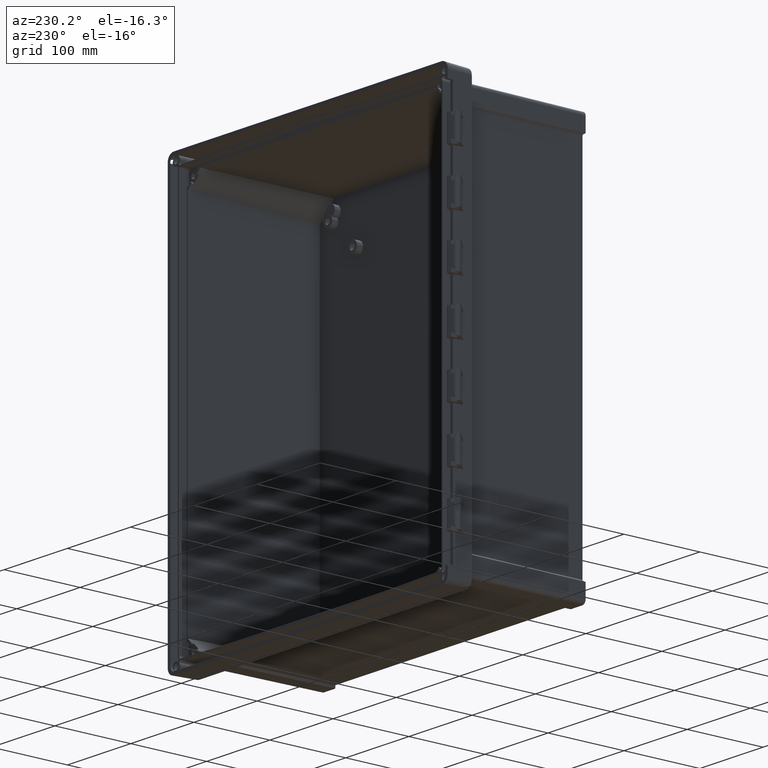
[diagram: clean part render]
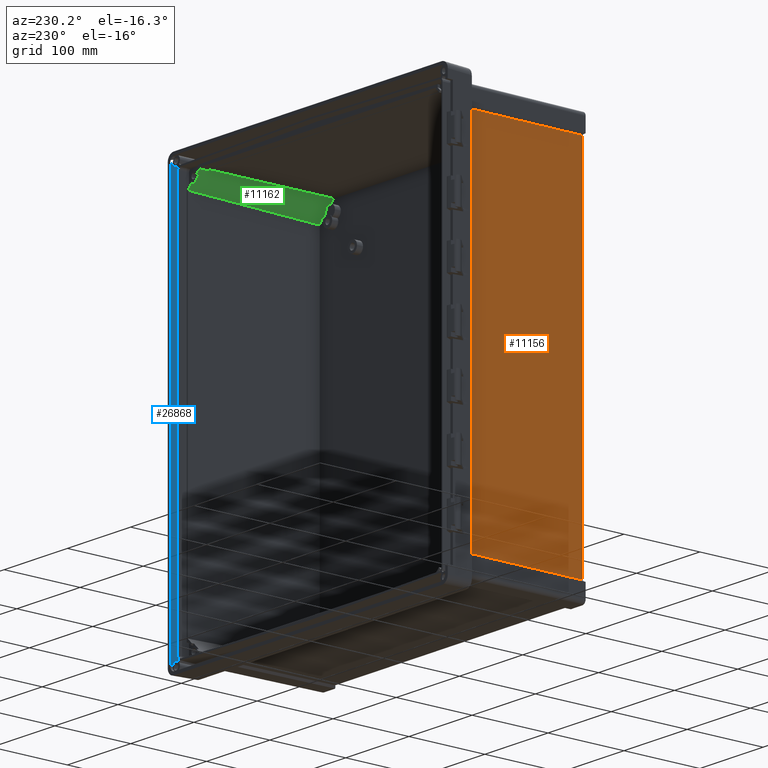
[diagram: same view with three faces highlighted in distinct colors, each labeled with its STEP entity id]
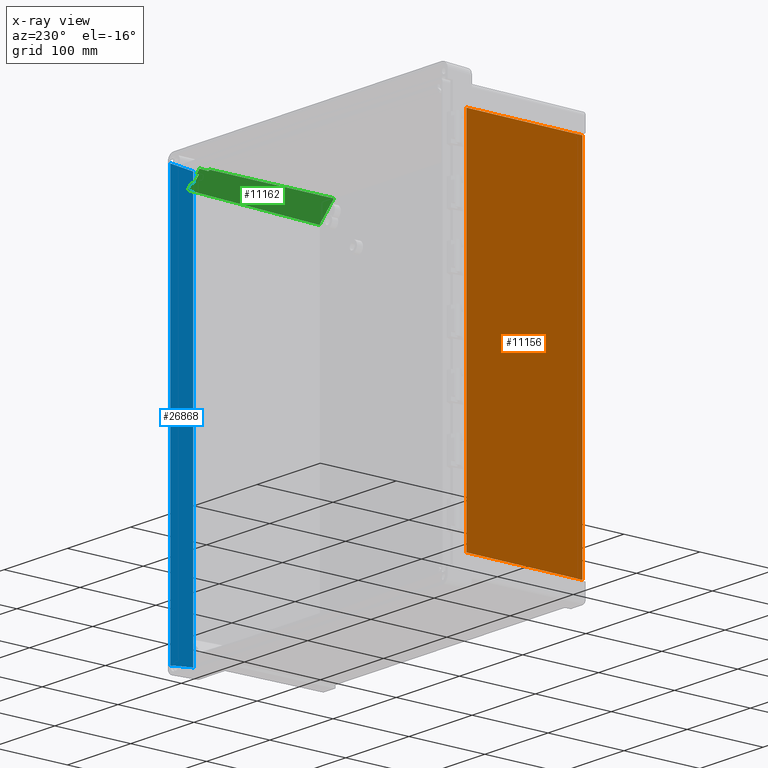
[diagram: x-ray of the same camera — body ghosted, the three highlighted faces saturated]
A machine part, auxiliary view with three faces highlighted in distinct colors.
The next image is the same camera in x-ray (body ghosted, the three faces saturated) — at least one of them is partly hidden behind the body in this view.
Their STEP definitions:

[orange] entity #11156 — the highlighted planar face has unit normal (-1, -0.0087, 0).
#654 = CARTESIAN_POINT ( 'NONE',  ( -207.2471312138000000, -189.4000000000999900, 234.4709002659000100 ) ) ;
#885 = CARTESIAN_POINT ( 'NONE',  ( -208.5928791320000100, -35.19256569062999800, 234.6123440854000000 ) ) ;
#2922 = EDGE_CURVE ( 'NONE', #5959, #12480, #6989, .T. ) ;
#3269 = VERTEX_POINT ( 'NONE', #885 ) ;
#3688 = LINE ( 'NONE', #654, #6476 ) ;
#4190 = VERTEX_POINT ( 'NONE', #24749 ) ;
#4219 = DIRECTION ( 'NONE',  ( -0.008726532000220398700, 0.9999615024547456900, -0.0009171955609129419500 ) ) ;
#4919 = FACE_OUTER_BOUND ( 'NONE', #10444, .T. ) ;
#5228 = VECTOR ( 'NONE', #4219, 999.9999999999998900 ) ;
#5959 = VERTEX_POINT ( 'NONE', #6683 ) ;
#6476 = VECTOR ( 'NONE', #26833, 999.9999999999998900 ) ;
#6683 = CARTESIAN_POINT ( 'NONE',  ( -207.2471312138000000, -189.4000000000999900, 234.4709002659000100 ) ) ;
#6938 = DIRECTION ( 'NONE',  ( 0.0000000000000000000, 0.0000000000000000000, -1.000000000000000000 ) ) ;
#6964 = CARTESIAN_POINT ( 'NONE',  ( -207.2471312138000000, -189.4000000000999900, 234.4709002659000100 ) ) ;
#6989 = LINE ( 'NONE', #6964, #9142 ) ;
#7232 = AXIS2_PLACEMENT_3D ( 'NONE', #21560, #18609, #15654 ) ;
#7254 = CARTESIAN_POINT ( 'NONE',  ( -207.2471312138000000, -189.4000000000999900, -234.4709002659000100 ) ) ;
#8912 = DIRECTION ( 'NONE',  ( 0.0000000000000000000, 0.0000000000000000000, -1.000000000000000000 ) ) ;
#9142 = VECTOR ( 'NONE', #6938, 1000.000000000000000 ) ;
#10222 = LINE ( 'NONE', #7254, #5228 ) ;
#10444 = EDGE_LOOP ( 'NONE', ( #29011, #12749, #21706, #20069 ) ) ;
#11156 = ADVANCED_FACE ( 'NONE', ( #4919 ), #24519, .T. ) ;
#11900 = CARTESIAN_POINT ( 'NONE',  ( -208.5928791320000100, -35.19256569062999800, 234.6123440854000000 ) ) ;
#12480 = VERTEX_POINT ( 'NONE', #13803 ) ;
#12749 = ORIENTED_EDGE ( 'NONE', *, *, #2922, .F. ) ;
#13803 = CARTESIAN_POINT ( 'NONE',  ( -207.2471312138000000, -189.4000000000999900, -234.4709002659000100 ) ) ;
#14911 = LINE ( 'NONE', #11900, #25597 ) ;
#15654 = DIRECTION ( 'NONE',  ( -0.008726535498373750800, 0.9999619230641713100, 0.0000000000000000000 ) ) ;
#17247 = EDGE_CURVE ( 'NONE', #3269, #4190, #14911, .T. ) ;
#18609 = DIRECTION ( 'NONE',  ( -0.9999619230641713100, -0.008726535498373750800, 0.0000000000000000000 ) ) ;
#20069 = ORIENTED_EDGE ( 'NONE', *, *, #17247, .T. ) ;
#21560 = CARTESIAN_POINT ( 'NONE',  ( -208.9000000000000100, 0.0000000000000000000, 157.6999999999999900 ) ) ;
#21706 = ORIENTED_EDGE ( 'NONE', *, *, #27906, .T. ) ;
#22127 = EDGE_CURVE ( 'NONE', #12480, #4190, #10222, .T. ) ;
#24519 = PLANE ( 'NONE',  #7232 ) ;
#24749 = CARTESIAN_POINT ( 'NONE',  ( -208.5928791320000100, -35.19256569062999800, -234.6123440854000000 ) ) ;
#25597 = VECTOR ( 'NONE', #8912, 1000.000000000000000 ) ;
#26833 = DIRECTION ( 'NONE',  ( -0.008726532000220398700, 0.9999615024547456900, 0.0009171955609133419100 ) ) ;
#27906 = EDGE_CURVE ( 'NONE', #5959, #3269, #3688, .T. ) ;
#29011 = ORIENTED_EDGE ( 'NONE', *, *, #22127, .F. ) ;

[blue] entity #26868 — the highlighted planar face has unit normal (0.9994, -0.0349, 0).
#136 = CARTESIAN_POINT ( 'NONE',  ( 216.9128039142223100, -13.95147051077854900, 262.6841890896626500 ) ) ;
#199 = CARTESIAN_POINT ( 'NONE',  ( 217.1742322760200900, -6.465140338090647800, -263.4865439739774000 ) ) ;
#308 = CARTESIAN_POINT ( 'NONE',  ( 217.3772715370931500, -0.6508580205318745800, 264.6830965878095300 ) ) ;
#568 = CARTESIAN_POINT ( 'NONE',  ( 217.1742371676016000, -6.465000354857054700, -263.4865627837542100 ) ) ;
#650 = CARTESIAN_POINT ( 'NONE',  ( 216.3715907726999900, -29.44978711059999900, 261.5975893381000200 ) ) ;
#853 = CARTESIAN_POINT ( 'NONE',  ( 216.6248665685366200, -22.19691727144200800, 262.0369375502506800 ) ) ;
#917 = CARTESIAN_POINT ( 'NONE',  ( 217.1741685305564400, -6.466964569773228500, -263.4862991358581300 ) ) ;
#1029 = CARTESIAN_POINT ( 'NONE',  ( 217.3330318160030900, -1.917717878832822400, 264.2842073695072700 ) ) ;
#1292 = CARTESIAN_POINT ( 'NONE',  ( 217.1740655630265200, -6.469911237246535900, -263.4859036654119100 ) ) ;
#1634 = CARTESIAN_POINT ( 'NONE',  ( 217.3248679220687900, -2.154345437178192000, -264.0653026105287600 ) ) ;
#1743 = CARTESIAN_POINT ( 'NONE',  ( 217.2745149666645500, -3.593421197810410500, 263.9304644168272500 ) ) ;
#2054 = EDGE_LOOP ( 'NONE', ( #5017, #21178, #25446, #16291 ) ) ;
#2467 = CARTESIAN_POINT ( 'NONE',  ( 217.1723668219998200, -6.518561340808479300, 263.4793861263141800 ) ) ;
#2634 = CARTESIAN_POINT ( 'NONE',  ( 217.3966079507783900, -0.09713558065849843500, 265.0181641220518700 ) ) ;
#2680 = VERTEX_POINT ( 'NONE', #10883 ) ;
#3175 = CARTESIAN_POINT ( 'NONE',  ( 216.9125129688265800, -13.95980209681936500, 262.6834506456178800 ) ) ;
#3340 = CARTESIAN_POINT ( 'NONE',  ( 217.3734942477852600, -0.7590254338749520300, 264.6381057388116500 ) ) ;
#3498 = DIRECTION ( 'NONE',  ( 0.03489949670249985200, 0.9993908270190956500, 0.0000000000000000000 ) ) ;
#3887 = CARTESIAN_POINT ( 'NONE',  ( 216.4776409420134400, -26.41290760229510300, 261.7709784421554100 ) ) ;
#3951 = CARTESIAN_POINT ( 'NONE',  ( 217.1738252217219600, -6.476789210377615900, -263.4849809108298500 ) ) ;
#4061 = CARTESIAN_POINT ( 'NONE',  ( 217.3312216104204400, -1.969555384389345400, 264.2712746808142600 ) ) ;
#4767 = CARTESIAN_POINT ( 'NONE',  ( 217.2734052352008100, -3.625199749082059300, 263.9246916374008300 ) ) ;
#5017 = ORIENTED_EDGE ( 'NONE', *, *, #10313, .T. ) ;
#5479 = CARTESIAN_POINT ( 'NONE',  ( 217.1704208929017700, -6.574285459330807800, 263.4719478878082600 ) ) ;
#5654 = CARTESIAN_POINT ( 'NONE',  ( 217.3961115594753700, -0.1113503677377352500, 265.0052578864084600 ) ) ;
#6214 = CARTESIAN_POINT ( 'NONE',  ( 216.9120764603276800, -13.97230206475489200, 262.6823430243769100 ) ) ;
#6280 = CARTESIAN_POINT ( 'NONE',  ( 217.1733442041677900, -6.490554819413222100, -263.4831354408785800 ) ) ;
#6384 = CARTESIAN_POINT ( 'NONE',  ( 217.3718279794655600, -0.8067411155154443600, 264.6194629691211200 ) ) ;
#6545 = DIRECTION ( 'NONE',  ( 0.9993908270190957600, -0.03489949670249985900, 0.0000000000000000000 ) ) ;
#7100 = CARTESIAN_POINT ( 'NONE',  ( 217.3310176385373900, -1.975396374897126400, 264.2698236435470600 ) ) ;
#7793 = CARTESIAN_POINT ( 'NONE',  ( 217.2717349633219000, -3.673030077657860800, 263.9160328012225700 ) ) ;
#8490 = EDGE_CURVE ( 'NONE', #2680, #16603, #28639, .T. ) ;
#8499 = CARTESIAN_POINT ( 'NONE',  ( 217.1665081594796000, -6.686331484636408400, 263.4570776154957900 ) ) ;
#8663 = CARTESIAN_POINT ( 'NONE',  ( 217.3952708802200700, -0.1354242718240630200, 264.9846998122538900 ) ) ;
#8990 = VECTOR ( 'NONE', #20056, 1000.000000000000000 ) ;
#9198 = CARTESIAN_POINT ( 'NONE',  ( 216.9110573076584700, -14.00148677872450900, 262.6797588885981400 ) ) ;
#9257 = CARTESIAN_POINT ( 'NONE',  ( 217.1723808292313200, -6.518124688578189400, -263.4794446581608400 ) ) ;
#9368 = CARTESIAN_POINT ( 'NONE',  ( 217.3709869402981700, -0.8308253261322187100, 264.6102480880653000 ) ) ;
#9521 = CARTESIAN_POINT ( 'NONE',  ( 217.4000000000000100, 0.0000000000000000000, -170.6471312404000000 ) ) ;
#9905 = CARTESIAN_POINT ( 'NONE',  ( 216.3715907726999900, -29.44978711059999900, 261.5975893381000200 ) ) ;
#9967 = CARTESIAN_POINT ( 'NONE',  ( 217.1704487196677500, -6.573419031283166600, -263.4720637241438800 ) ) ;
#10069 = CARTESIAN_POINT ( 'NONE',  ( 217.3304993415737300, -1.990238458025442200, 264.2661438713678900 ) ) ;
#10305 = EDGE_CURVE ( 'NONE', #16603, #23004, #21808, .T. ) ;
#10313 = EDGE_CURVE ( 'NONE', #16952, #23004, #11239, .T. ) ;
#10775 = CARTESIAN_POINT ( 'NONE',  ( 217.2610487557726900, -3.979043023669430700, 263.8611998316885100 ) ) ;
#10883 = CARTESIAN_POINT ( 'NONE',  ( 216.3715907726999900, -29.44978711059999900, -261.5975893381000200 ) ) ;
#11239 = B_SPLINE_CURVE_WITH_KNOTS ( 'NONE', 3,
 ( #9905, #3887, #853, #27028, #24064, #21111, #18152, #15206, #12186, #9198, #6214, #3175, #136, #26341, #23356, #20428, #17458, #14498, #11479, #8499, #5479, #2467, #28586, #25626, #22656, #19740, #16755, #13788, #10775, #7793, #4767, #1743, #27884, #24936, #21978, #19018, #16069, #13070, #10069, #7100, #4061, #1029, #27205, #24233, #21278, #18318, #15376, #12353, #9368, #6384, #3340, #308, #26505, #23523, #20590, #17626, #14658, #11654, #8663, #5654, #2634, #28759, #25798, #22815, #19901 ),
 .UNSPECIFIED., .F., .F.,
 ( 4, 1, 1, 1, 1, 1, 1, 1, 1, 1, 2, 2, 1, 1, 1, 1, 1, 1, 1, 1, 2, 2, 1, 1, 1, 2, 2, 1, 1, 1, 1, 2, 2, 1, 1, 1, 1, 2, 2, 1, 1, 1, 2, 2, 1, 2, 2, 1, 4 ),
 ( 0.0000000000000000000, 0.2499999999999127900, 0.3749999999998692200, 0.4374999999998479000, 0.4687499999998374600, 0.4843749999998323000, 0.4921874999998299700, 0.4960937499998288600, 0.4980468749998285300, 0.4990234374998288000, 0.4995117187498286900, 0.4999999999998285800, 0.6249999999998256900, 0.6874999999998244700, 0.7187499999998239200, 0.7343749999998237000, 0.7421874999998234700, 0.7460937499998234700, 0.7480468749998239200, 0.7490234374998238100, 0.7495117187498241400, 0.7499999999998244700, 0.8124999999999150700, 0.8437499999999599200, 0.8476562499999654700, 0.8496093749999682500, 0.8515624999999709100, 0.8593749999999819000, 0.8750000000000026600, 0.9062500000000443000, 0.9082031250000464100, 0.9091796875000466300, 0.9101562500000468500, 0.9140625000000475200, 0.9218750000000487400, 0.9375000000000514000, 0.9531250000000540700, 0.9541015625000546200, 0.9550781250000551800, 0.9570312500000538500, 0.9609375000000510700, 0.9687500000000429700, 0.9765625000000349700, 0.9804687500000308600, 0.9843750000000268700, 0.9882812500000228700, 0.9902343750000208700, 0.9921875000000188700, 1.000000000000000000 ),
 .UNSPECIFIED. ) ;
#11479 = CARTESIAN_POINT ( 'NONE',  ( 217.1585991917310100, -6.912814688291315500, 263.4273618896685300 ) ) ;
#11654 = CARTESIAN_POINT ( 'NONE',  ( 217.3939139556956400, -0.1742815061915404800, 264.9544921126387200 ) ) ;
#12024 = CARTESIAN_POINT ( 'NONE',  ( 217.4000000000000100, 0.0000000000000000000, -265.2500000238999900 ) ) ;
#12118 = CARTESIAN_POINT ( 'NONE',  ( 217.4000000000000100, 0.0000000000000000000, -265.2500000238999900 ) ) ;
#12186 = CARTESIAN_POINT ( 'NONE',  ( 216.9090164709665500, -14.05992869514402200, 262.6745918721719000 ) ) ;
#12353 = CARTESIAN_POINT ( 'NONE',  ( 217.3708237729003700, -0.8354978290638356300, 264.6084783180289200 ) ) ;
#12510 = PLANE ( 'NONE',  #17743 ) ;
#12891 = DIRECTION ( 'NONE',  ( 0.0000000000000000000, 0.0000000000000000000, 1.000000000000000000 ) ) ;
#12958 = CARTESIAN_POINT ( 'NONE',  ( 217.1665630587710600, -6.684626134193277600, -263.4573044032223400 ) ) ;
#13070 = CARTESIAN_POINT ( 'NONE',  ( 217.3297193493999900, -2.012574511470905900, 264.2606230741608300 ) ) ;
#13239 = FACE_OUTER_BOUND ( 'NONE', #2054, .T. ) ;
#13788 = CARTESIAN_POINT ( 'NONE',  ( 217.2312247519686800, -4.833090750513057400, 263.7170024317986800 ) ) ;
#14498 = CARTESIAN_POINT ( 'NONE',  ( 217.1424472526168200, -7.375345707775978500, 263.3680297132049200 ) ) ;
#14658 = CARTESIAN_POINT ( 'NONE',  ( 217.3920849934699500, -0.2266561317304323600, 264.9186905448718200 ) ) ;
#15137 = CARTESIAN_POINT ( 'NONE',  ( 217.4000000020161800, 5.783240012192945900E-008, -264.6595016125490900 ) ) ;
#15206 = CARTESIAN_POINT ( 'NONE',  ( 216.9049246721685900, -14.17710248190407900, 262.6642628598476100 ) ) ;
#15272 = CARTESIAN_POINT ( 'NONE',  ( 217.1587059460975100, -6.909514010014146600, -263.4277961214734800 ) ) ;
#15376 = CARTESIAN_POINT ( 'NONE',  ( 217.3703915876158100, -0.8478739963397813300, 264.6038060318357500 ) ) ;
#15900 = CARTESIAN_POINT ( 'NONE',  ( 217.4000000000000100, 0.0000000000000000000, -265.2500000238999900 ) ) ;
#15958 = CARTESIAN_POINT ( 'NONE',  ( 217.1426483710447400, -7.369184441658486400, -263.3688223736014600 ) ) ;
#16069 = CARTESIAN_POINT ( 'NONE',  ( 217.3205303052205000, -2.275714308022331400, 264.1961739105628300 ) ) ;
#16291 = ORIENTED_EDGE ( 'NONE', *, *, #20063, .T. ) ;
#16603 = VERTEX_POINT ( 'NONE', #12024 ) ;
#16755 = CARTESIAN_POINT ( 'NONE',  ( 217.1982355515411000, -5.777777849556214200, 263.5788286420994400 ) ) ;
#16952 = VERTEX_POINT ( 'NONE', #650 ) ;
#17458 = CARTESIAN_POINT ( 'NONE',  ( 217.1088073599203200, -8.338666195444725200, 263.2497624610416000 ) ) ;
#17626 = CARTESIAN_POINT ( 'NONE',  ( 217.3900200123936800, -0.2857894528550310500, 264.8800920430292100 ) ) ;
#17743 = AXIS2_PLACEMENT_3D ( 'NONE', #9521, #6545, #3498 ) ;
#18152 = CARTESIAN_POINT ( 'NONE',  ( 216.8967005729165000, -14.41260987110840100, 262.6436249173107200 ) ) ;
#18318 = CARTESIAN_POINT ( 'NONE',  ( 217.3666904446512300, -0.9538608637080564500, 264.5640443024272500 ) ) ;
#18911 = CARTESIAN_POINT ( 'NONE',  ( 217.1091584008665600, -8.328104024957527300, -263.2510571752370700 ) ) ;
#19018 = CARTESIAN_POINT ( 'NONE',  ( 217.3059599532855900, -2.692954596453071700, 264.1034582783807400 ) ) ;
#19631 = CARTESIAN_POINT ( 'NONE',  ( 217.0780912356667600, -9.217884330660211800, -263.1504660445070300 ) ) ;
#19740 = CARTESIAN_POINT ( 'NONE',  ( 217.1741188414481800, -6.468390068129504100, 263.4861076657950900 ) ) ;
#19901 = CARTESIAN_POINT ( 'NONE',  ( 217.4000000000000100, 0.0000000000000000000, 265.2500000238999900 ) ) ;
#20056 = DIRECTION ( 'NONE',  ( 0.0000000000000000000, 0.0000000000000000000, 1.000000000000000000 ) ) ;
#20063 = EDGE_CURVE ( 'NONE', #2680, #16952, #25958, .T. ) ;
#20195 = CARTESIAN_POINT ( 'NONE',  ( 217.4000000000000100, 0.0000000000000000000, 265.2500000238999900 ) ) ;
#20323 = CARTESIAN_POINT ( 'NONE',  ( 217.0127988188245400, -11.08791058780355800, -262.9498536328353000 ) ) ;
#20428 = CARTESIAN_POINT ( 'NONE',  ( 217.0361835166545700, -10.41834096557985700, 263.0148163597698400 ) ) ;
#20493 = CARTESIAN_POINT ( 'NONE',  ( 216.9650586131850200, -12.45521562021645500, -262.8168713932931800 ) ) ;
#20590 = CARTESIAN_POINT ( 'NONE',  ( 217.3887466418945300, -0.3222540129932137100, 264.8572316346057400 ) ) ;
#21004 = CARTESIAN_POINT ( 'NONE',  ( 216.9128917854445700, -13.94895372413441800, -262.6844121730227400 ) ) ;
#21111 = CARTESIAN_POINT ( 'NONE',  ( 216.8800903677879100, -14.88826391225386400, 262.6024293606821500 ) ) ;
#21172 = CARTESIAN_POINT ( 'NONE',  ( 216.9128088239116300, -13.95132923754781600, -262.6842016105343900 ) ) ;
#21178 = ORIENTED_EDGE ( 'NONE', *, *, #10305, .F. ) ;
#21278 = CARTESIAN_POINT ( 'NONE',  ( 217.3585961275251200, -1.185651779085153500, 264.4852989756008100 ) ) ;
#21699 = CARTESIAN_POINT ( 'NONE',  ( 216.9125227813620400, -13.95951975740090000, -262.6834756626040000 ) ) ;
#21808 = LINE ( 'NONE', #15900, #22203 ) ;
#21978 = CARTESIAN_POINT ( 'NONE',  ( 217.2873592906760200, -3.225607882168671600, 263.9985962814598100 ) ) ;
#22203 = VECTOR ( 'NONE', #12891, 1000.000000000000000 ) ;
#22383 = CARTESIAN_POINT ( 'NONE',  ( 216.9120936202858200, -13.97180833309912600, -262.6823867607986900 ) ) ;
#22549 = CARTESIAN_POINT ( 'NONE',  ( 216.9110915636653900, -14.00050124782519500, -262.6798461306796600 ) ) ;
#22656 = CARTESIAN_POINT ( 'NONE',  ( 217.1740292317770700, -6.470956153370359200, 263.4857634028260800 ) ) ;
#22815 = CARTESIAN_POINT ( 'NONE',  ( 217.4000000002324100, 6.655256934547022800E-009, 265.1819792054782900 ) ) ;
#22978 = CARTESIAN_POINT ( 'NONE',  ( 216.3715907726999900, -29.44978711059999900, -261.5975893381000200 ) ) ;
#23004 = VERTEX_POINT ( 'NONE', #20195 ) ;
#23076 = CARTESIAN_POINT ( 'NONE',  ( 216.9090847272138100, -14.05796536299819100, -262.6747654345110200 ) ) ;
#23249 = CARTESIAN_POINT ( 'NONE',  ( 216.9050601606164400, -14.17320673622760400, -262.6646063066693300 ) ) ;
#23356 = CARTESIAN_POINT ( 'NONE',  ( 216.9647732660739100, -12.46326298820594400, 262.8161569639170200 ) ) ;
#23422 = CARTESIAN_POINT ( 'NONE',  ( 216.8969674459114000, -14.40494205422010200, -262.6442971747698000 ) ) ;
#23523 = CARTESIAN_POINT ( 'NONE',  ( 217.3860781258838400, -0.3986703133658281400, 264.8109997769058200 ) ) ;
#23776 = CARTESIAN_POINT ( 'NONE',  ( 216.8806076378009500, -14.87342297633978200, -262.6037159331269200 ) ) ;
#23957 = CARTESIAN_POINT ( 'NONE',  ( 216.8471901050559200, -15.83042596511784500, -262.5227057643310800 ) ) ;
#24064 = CARTESIAN_POINT ( 'NONE',  ( 216.8462219310320100, -15.85812904549196600, 262.5203595612072100 ) ) ;
#24125 = CARTESIAN_POINT ( 'NONE',  ( 216.7775604770234600, -17.82459652082885900, -262.3613286426424900 ) ) ;
#24233 = CARTESIAN_POINT ( 'NONE',  ( 217.3467091224058000, -1.526051068455885200, 264.3862889263581900 ) ) ;
#24491 = CARTESIAN_POINT ( 'NONE',  ( 216.7130783797476300, -19.67131055970377300, -262.2242250692763700 ) ) ;
#24660 = CARTESIAN_POINT ( 'NONE',  ( 216.5777048464659300, -23.54797195895044100, -261.9519622393186200 ) ) ;
#24827 = CARTESIAN_POINT ( 'NONE',  ( 216.4789045016886200, -26.37672398711067200, -261.7730443274239200 ) ) ;
#24936 = CARTESIAN_POINT ( 'NONE',  ( 217.2788986063200700, -3.467890182333885000, 263.9534367494490000 ) ) ;
#25184 = CARTESIAN_POINT ( 'NONE',  ( 216.3715907726999900, -29.44978711059999900, -261.5975893381000200 ) ) ;
#25446 = ORIENTED_EDGE ( 'NONE', *, *, #8490, .F. ) ;
#25626 = CARTESIAN_POINT ( 'NONE',  ( 217.1737524844787700, -6.478881159096110800, 263.4847004279978900 ) ) ;
#25798 = CARTESIAN_POINT ( 'NONE',  ( 217.3992018710758000, -0.02285542202820830100, 265.1064231522955800 ) ) ;
#25958 = LINE ( 'NONE', #22978, #8990 ) ;
#26341 = CARTESIAN_POINT ( 'NONE',  ( 216.9128929000840200, -13.94892228910188900, 262.6844149637468000 ) ) ;
#26505 = CARTESIAN_POINT ( 'NONE',  ( 217.3823514643764600, -0.5053879361885821300, 264.7516293808151300 ) ) ;
#26868 = ADVANCED_FACE ( 'NONE', ( #13239 ), #12510, .F. ) ;
#27028 = CARTESIAN_POINT ( 'NONE',  ( 216.7758929515258600, -17.87208751575694200, 262.3575052173845300 ) ) ;
#27205 = CARTESIAN_POINT ( 'NONE',  ( 217.3372984702149000, -1.795536888149611200, 264.3151122785616800 ) ) ;
#27884 = CARTESIAN_POINT ( 'NONE',  ( 217.2753054084204800, -3.570785907482283000, 263.9345899060848500 ) ) ;
#28586 = CARTESIAN_POINT ( 'NONE',  ( 217.1733371771455800, -6.490774005079926700, 263.4831060211547000 ) ) ;
#28639 = B_SPLINE_CURVE_WITH_KNOTS ( 'NONE', 3,
 ( #25184, #24827, #24660, #24491, #24125, #23957, #23776, #23422, #23249, #23076, #22549, #22383, #21699, #21172, #21004, #20493, #20323, #19631, #18911, #15958, #15272, #12958, #9967, #9257, #6280, #3951, #1292, #917, #568, #199, #1634, #15137, #12118 ),
 .UNSPECIFIED., .F., .F.,
 ( 4, 2, 1, 1, 1, 1, 1, 1, 1, 1, 2, 2, 2, 1, 1, 1, 1, 1, 1, 1, 1, 1, 2, 2, 4 ),
 ( 0.0000000000000000000, 0.2500000000003683200, 0.3750000000005527200, 0.4375000000006446500, 0.4687500000006907800, 0.4843750000007139800, 0.4921875000007256400, 0.4960937500007315300, 0.4980468750007344700, 0.4990234375007359700, 0.4995117187507364100, 0.5000000000007368600, 0.6250000000009103800, 0.6875000000009967600, 0.7187500000010403900, 0.7343750000010621500, 0.7421875000010731400, 0.7460937500010785800, 0.7480468750010809100, 0.7490234375010821300, 0.7495117187510826900, 0.7497558593760830200, 0.7498779296885829100, 0.7500000000010826900, 1.000000000000000000 ),
 .UNSPECIFIED. ) ;
#28759 = CARTESIAN_POINT ( 'NONE',  ( 217.3974060801096200, -0.07428014697750816300, 265.0427045614183600 ) ) ;

[green] entity #11162 — the highlighted planar face has unit normal (-0.7069, 0.0262, -0.7069).
#347 = EDGE_CURVE ( 'NONE', #24758, #9478, #15045, .T. ) ;
#395 = VERTEX_POINT ( 'NONE', #14414 ) ;
#411 = LINE ( 'NONE', #26609, #9626 ) ;
#600 = CARTESIAN_POINT ( 'NONE',  ( 345942.4914784000100, -19.98691152585000100, -345500.6742429999900 ) ) ;
#633 = EDGE_CURVE ( 'NONE', #395, #4149, #14771, .T. ) ;
#1564 = VECTOR ( 'NONE', #12778, 1000.000000000000000 ) ;
#2345 = CARTESIAN_POINT ( 'NONE',  ( 191.5497458925999900, -13.26352849845000000, 250.5164730823999800 ) ) ;
#2371 = ORIENTED_EDGE ( 'NONE', *, *, #4428, .F. ) ;
#2466 = ORIENTED_EDGE ( 'NONE', *, *, #347, .F. ) ;
#2522 = EDGE_CURVE ( 'NONE', #4149, #9478, #12862, .T. ) ;
#2646 = ORIENTED_EDGE ( 'NONE', *, *, #24489, .T. ) ;
#2925 = EDGE_CURVE ( 'NONE', #28060, #15803, #6898, .T. ) ;
#3250 = ORIENTED_EDGE ( 'NONE', *, *, #27112, .F. ) ;
#3627 = PLANE ( 'NONE',  #7973 ) ;
#4075 = CARTESIAN_POINT ( 'NONE',  ( 204.0818924431999900, -185.3999990958000100, 231.6098317992000400 ) ) ;
#4149 = VERTEX_POINT ( 'NONE', #21090 ) ;
#4428 = EDGE_CURVE ( 'NONE', #395, #28274, #11425, .T. ) ;
#5349 = LINE ( 'NONE', #2345, #26988 ) ;
#5713 = CARTESIAN_POINT ( 'NONE',  ( 204.0818924431999900, -185.3999990958000100, 231.6098317992000400 ) ) ;
#5911 = CARTESIAN_POINT ( 'NONE',  ( 199.3397149749999900, -16.26352849845000000, 242.6154065437000000 ) ) ;
#6790 = DIRECTION ( 'NONE',  ( -0.04316785430567079300, -0.9990487776440183400, 0.006170594998627113000 ) ) ;
#6843 = CARTESIAN_POINT ( 'NONE',  ( 199.4693418418999900, -13.26352849845000000, 242.5968771331000100 ) ) ;
#6898 = LINE ( 'NONE', #6843, #6900 ) ;
#6900 = VECTOR ( 'NONE', #6790, 1000.000000000000100 ) ;
#7973 = AXIS2_PLACEMENT_3D ( 'NONE', #600, #26780, #23805 ) ;
#8622 = DIRECTION ( 'NONE',  ( -0.006170595005073734900, 0.9990487776442569200, 0.04316785429922814100 ) ) ;
#8718 = CARTESIAN_POINT ( 'NONE',  ( 204.5825891611817400, -128.0211737550279700, 233.2338689973042300 ) ) ;
#8724 = FACE_OUTER_BOUND ( 'NONE', #18945, .T. ) ;
#8813 = CARTESIAN_POINT ( 'NONE',  ( 199.4693418418999900, -13.26352849845000000, 242.5968771331000100 ) ) ;
#9170 = EDGE_CURVE ( 'NONE', #15803, #23666, #411, .T. ) ;
#9178 = CARTESIAN_POINT ( 'NONE',  ( 191.5497458925999900, -13.26352849845000000, 250.5164730823999800 ) ) ;
#9478 = VERTEX_POINT ( 'NONE', #23598 ) ;
#9626 = VECTOR ( 'NONE', #23626, 1000.000000000000000 ) ;
#9722 = CARTESIAN_POINT ( 'NONE',  ( 185.7424224739000100, -25.26352849845000000, 255.8794066760000000 ) ) ;
#9725 = VECTOR ( 'NONE', #19366, 1000.000000000000100 ) ;
#9749 = CARTESIAN_POINT ( 'NONE',  ( 184.2315345024027800, -78.64235112682067100, 255.4135441854340100 ) ) ;
#9797 = CARTESIAN_POINT ( 'NONE',  ( 182.7206465265883800, -132.0211737550271500, 254.9476816901921600 ) ) ;
#9856 = CARTESIAN_POINT ( 'NONE',  ( 181.2098317990999900, -185.3999990958000100, 254.4818924432000200 ) ) ;
#10075 = CARTESIAN_POINT ( 'NONE',  ( 188.8338764355113400, -185.3999994936612000, 246.8578966502447000 ) ) ;
#11162 = ADVANCED_FACE ( 'NONE', ( #8724 ), #3627, .T. ) ;
#11419 = ORIENTED_EDGE ( 'NONE', *, *, #2925, .F. ) ;
#11425 = B_SPLINE_CURVE_WITH_KNOTS ( 'NONE', 3,
 ( #15352, #10075, #22827, #4075 ),
 .UNSPECIFIED., .F., .F.,
 ( 4, 4 ),
 ( 0.0000000000000000000, 1.000000000000000000 ),
 .UNSPECIFIED. ) ;
#11609 = CARTESIAN_POINT ( 'NONE',  ( 191.5682753032000100, -16.26352849845000000, 250.3868462155000100 ) ) ;
#11709 = CARTESIAN_POINT ( 'NONE',  ( 205.0833591275275600, -70.64235112682237600, 234.8579794437201500 ) ) ;
#12778 = DIRECTION ( 'NONE',  ( 0.7071067811970975800, 0.0000000000000000000, -0.7071067811759975700 ) ) ;
#12835 = CARTESIAN_POINT ( 'NONE',  ( 185.7424224739000100, -25.26352849845000000, 255.8794066760000000 ) ) ;
#12862 = LINE ( 'NONE', #12835, #1564 ) ;
#13439 = VECTOR ( 'NONE', #8622, 1000.000000000000000 ) ;
#14365 = VERTEX_POINT ( 'NONE', #29081 ) ;
#14414 = CARTESIAN_POINT ( 'NONE',  ( 181.2098317990999900, -185.3999990958000100, 254.4818924432000200 ) ) ;
#14713 = CARTESIAN_POINT ( 'NONE',  ( 205.5841290895000100, -13.26352849845000000, 236.4820898854999900 ) ) ;
#14771 = B_SPLINE_CURVE_WITH_KNOTS ( 'NONE', 3,
 ( #9856, #9797, #9749, #9722 ),
 .UNSPECIFIED., .F., .F.,
 ( 4, 4 ),
 ( 0.0000000000000000000, 1.000000000000000000 ),
 .UNSPECIFIED. ) ;
#14922 = DIRECTION ( 'NONE',  ( -1.616560861725041400E-012, -0.9993150019885256300, -0.03700711824329094200 ) ) ;
#15016 = CARTESIAN_POINT ( 'NONE',  ( 187.0399999999999900, -13.26352849845000000, 255.0262189750000100 ) ) ;
#15045 = LINE ( 'NONE', #15016, #16645 ) ;
#15352 = CARTESIAN_POINT ( 'NONE',  ( 181.2098317990999900, -185.3999990958000100, 254.4818924432000200 ) ) ;
#15803 = VERTEX_POINT ( 'NONE', #5911 ) ;
#16645 = VECTOR ( 'NONE', #14922, 1000.000000000000100 ) ;
#16907 = ORIENTED_EDGE ( 'NONE', *, *, #9170, .F. ) ;
#17582 = LINE ( 'NONE', #11609, #13439 ) ;
#18173 = CARTESIAN_POINT ( 'NONE',  ( 187.0399999999999900, -13.26352849845000000, 255.0262189750000100 ) ) ;
#18197 = B_SPLINE_CURVE_WITH_KNOTS ( 'NONE', 3,
 ( #14713, #11709, #8718, #5713 ),
 .UNSPECIFIED., .F., .F.,
 ( 4, 4 ),
 ( 0.0000000000000000000, 1.000000000000000000 ),
 .UNSPECIFIED. ) ;
#18945 = EDGE_LOOP ( 'NONE', ( #2466, #26944, #3250, #16907, #11419, #23172, #2646, #2371, #27791, #21663 ) ) ;
#19046 = EDGE_CURVE ( 'NONE', #14365, #28060, #25269, .T. ) ;
#19366 = DIRECTION ( 'NONE',  ( -0.7071067811865474600, 0.0000000000000000000, 0.7071067811865474600 ) ) ;
#21090 = CARTESIAN_POINT ( 'NONE',  ( 185.7424224739000100, -25.26352849845000000, 255.8794066760000000 ) ) ;
#21261 = CARTESIAN_POINT ( 'NONE',  ( 204.0818924431999900, -185.3999990958000100, 231.6098317992000400 ) ) ;
#21380 = EDGE_CURVE ( 'NONE', #27940, #24758, #5349, .T. ) ;
#21663 = ORIENTED_EDGE ( 'NONE', *, *, #2522, .T. ) ;
#22308 = CARTESIAN_POINT ( 'NONE',  ( 205.5841290895000100, -13.26352849845000000, 236.4820898854999900 ) ) ;
#22827 = CARTESIAN_POINT ( 'NONE',  ( 196.4578966502130000, -185.3999994936612300, 239.2338764355796700 ) ) ;
#23172 = ORIENTED_EDGE ( 'NONE', *, *, #19046, .F. ) ;
#23598 = CARTESIAN_POINT ( 'NONE',  ( 187.0399999999999900, -25.26352849845000000, 254.5818291499000200 ) ) ;
#23626 = DIRECTION ( 'NONE',  ( -0.7071067811847975300, 0.0000000000000000000, 0.7071067811882975100 ) ) ;
#23666 = VERTEX_POINT ( 'NONE', #28352 ) ;
#23805 = DIRECTION ( 'NONE',  ( -0.7071067811865474600, 0.0000000000000000000, 0.7071067811865474600 ) ) ;
#24489 = EDGE_CURVE ( 'NONE', #14365, #28274, #18197, .T. ) ;
#24758 = VERTEX_POINT ( 'NONE', #18173 ) ;
#25269 = LINE ( 'NONE', #22308, #9725 ) ;
#26609 = CARTESIAN_POINT ( 'NONE',  ( 199.3397149749999900, -16.26352849845000000, 242.6154065437000000 ) ) ;
#26780 = DIRECTION ( 'NONE',  ( -0.7068644733530209400, 0.02617694830787077600, -0.7068644733530209400 ) ) ;
#26944 = ORIENTED_EDGE ( 'NONE', *, *, #21380, .F. ) ;
#26988 = VECTOR ( 'NONE', #28463, 1000.000000000000100 ) ;
#27112 = EDGE_CURVE ( 'NONE', #23666, #27940, #17582, .T. ) ;
#27791 = ORIENTED_EDGE ( 'NONE', *, *, #633, .T. ) ;
#27940 = VERTEX_POINT ( 'NONE', #9178 ) ;
#28060 = VERTEX_POINT ( 'NONE', #8813 ) ;
#28274 = VERTEX_POINT ( 'NONE', #21261 ) ;
#28352 = CARTESIAN_POINT ( 'NONE',  ( 191.5682753032000100, -16.26352849845000000, 250.3868462155000100 ) ) ;
#28463 = DIRECTION ( 'NONE',  ( -0.7071067811849974800, 0.0000000000000000000, 0.7071067811880974400 ) ) ;
#29081 = CARTESIAN_POINT ( 'NONE',  ( 205.5841290895000100, -13.26352849845000000, 236.4820898854999900 ) ) ;